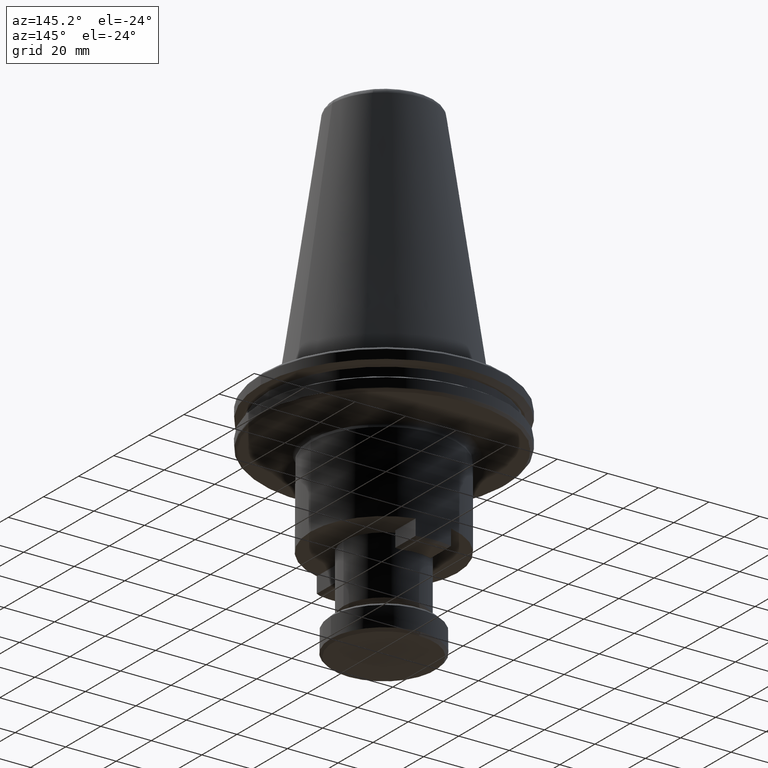
[diagram: clean part render]
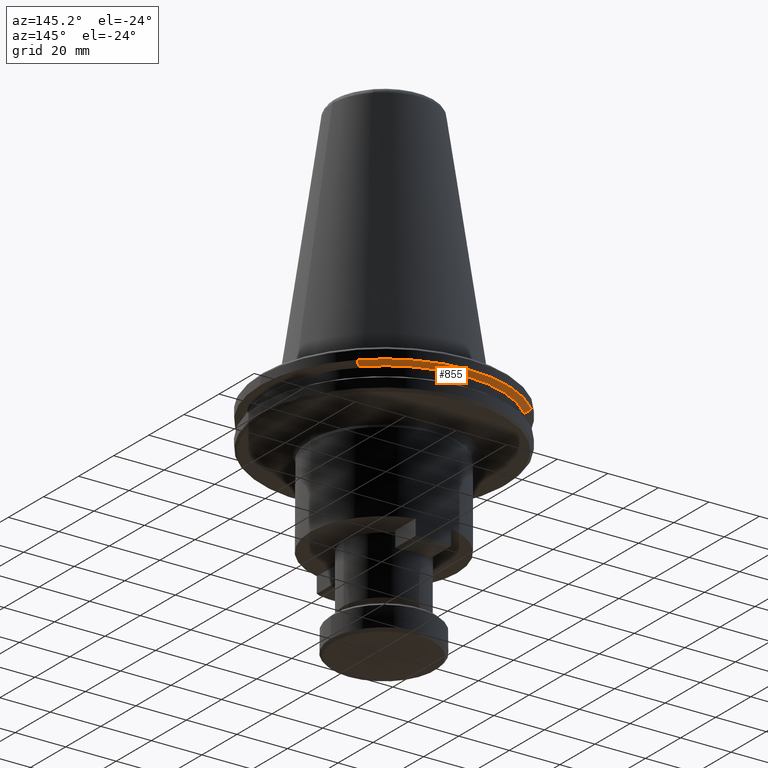
[diagram: same view with one face highlighted and labeled with its STEP entity id]
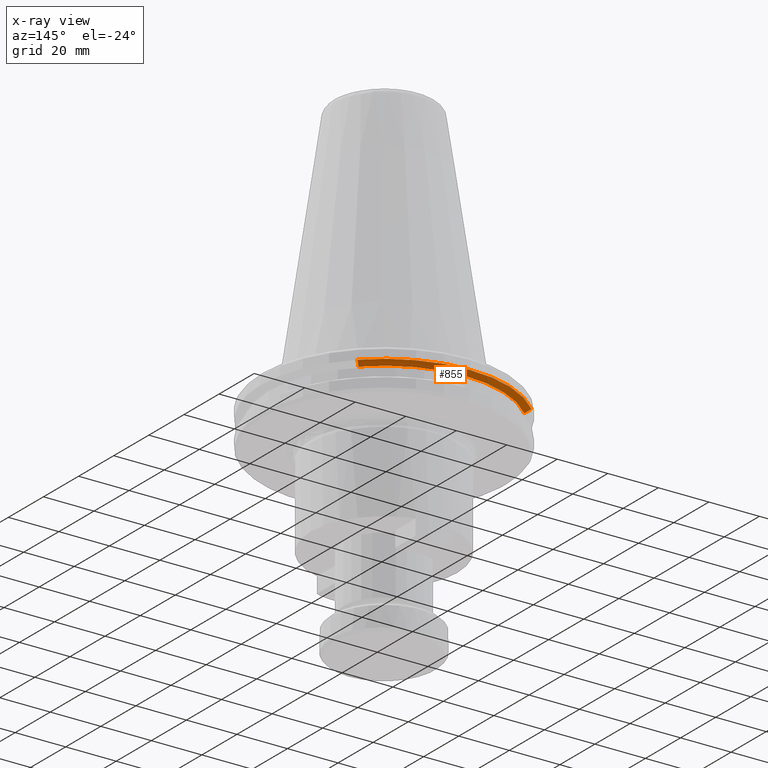
[diagram: x-ray of the same camera — body ghosted, the highlighted face saturated]
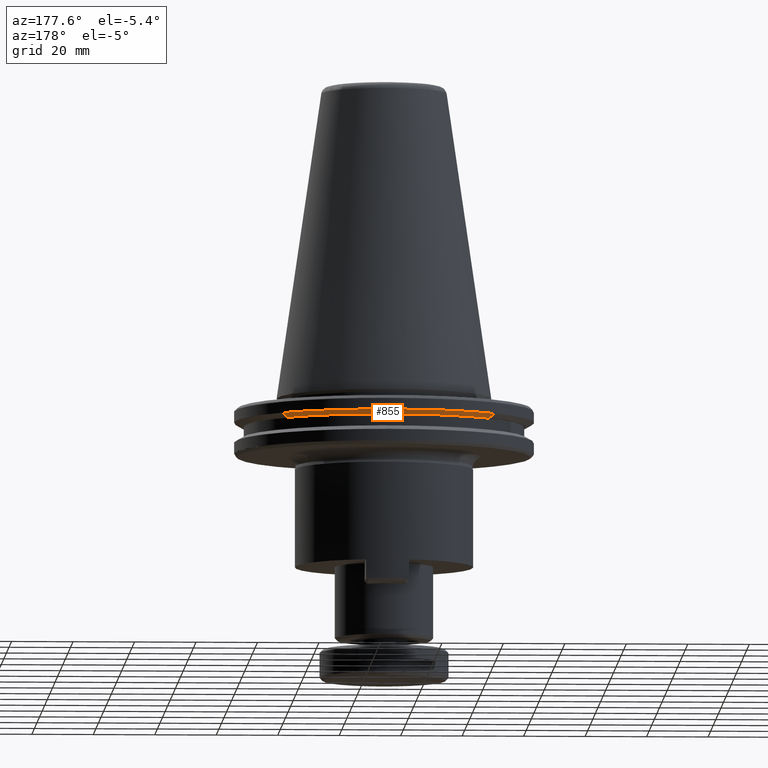
[diagram: same view with one face highlighted and labeled with its STEP entity id]
A machine part, auxiliary view. The second image highlights one B-rep face of the part: STEP entity #855.
The next image is the same camera in x-ray: the body ghosted, the highlighted face saturated — about 0% of this face is hidden behind the body in this view.
A second angle (auxiliary view) of the same face is appended — the face is thin or edge-on in the first view.
In plain terms, the highlighted conical surface has half-angle 60 deg.
Its self-contained STEP definition (entity closure, byte-faithful):
#135 = DIRECTION ( 'NONE',  ( -1.000000000000000000, 0.0000000000000000000, 0.0000000000000000000 ) ) ;
#308 = EDGE_CURVE ( 'NONE', #1368, #1232, #2810, .T. ) ;
#682 = CARTESIAN_POINT ( 'NONE',  ( 57.31755187138055200, 146.3587303515452000, 90.14709804128317200 ) ) ;
#855 = ADVANCED_FACE ( 'NONE', ( #1712 ), #1658, .T. ) ;
#870 = ORIENTED_EDGE ( 'NONE', *, *, #4201, .T. ) ;
#932 = AXIS2_PLACEMENT_3D ( 'NONE', #2227, #2494, #3445 ) ;
#947 = EDGE_CURVE ( 'NONE', #1232, #2693, #1549, .T. ) ;
#1150 = DIRECTION ( 'NONE',  ( -1.000000000000000000, 0.0000000000000000000, 0.0000000000000000000 ) ) ;
#1178 = DIRECTION ( 'NONE',  ( -0.0000000000000000000, -0.0000000000000000000, -1.000000000000000000 ) ) ;
#1198 = CARTESIAN_POINT ( 'NONE',  ( 91.78900745422478700, 111.8872747687010000, 88.77450277828040700 ) ) ;
#1232 = VERTEX_POINT ( 'NONE', #3681 ) ;
#1330 = EDGE_LOOP ( 'NONE', ( #3790, #870, #4617, #4790 ) ) ;
#1368 = VERTEX_POINT ( 'NONE', #682 ) ;
#1549 = CIRCLE ( 'NONE', #3522, 46.37259526400004700 ) ;
#1564 = AXIS2_PLACEMENT_3D ( 'NONE', #4752, #2434, #135 ) ;
#1658 = CONICAL_SURFACE ( 'NONE', #932, 48.75000000000002800, 1.047197551606559500 ) ;
#1712 = FACE_OUTER_BOUND ( 'NONE', #1330, .T. ) ;
#2018 = CARTESIAN_POINT ( 'NONE',  ( 91.78900745422483000, 111.8872747687010500, 62.00127242358518500 ) ) ;
#2227 = CARTESIAN_POINT ( 'NONE',  ( 91.78900745422478700, 111.8872747687010000, 90.14709804128317200 ) ) ;
#2434 = DIRECTION ( 'NONE',  ( -0.0000000000000000000, -0.0000000000000000000, -1.000000000000000000 ) ) ;
#2494 = DIRECTION ( 'NONE',  ( 0.0000000000000000000, 0.0000000000000000000, 1.000000000000000000 ) ) ;
#2693 = VERTEX_POINT ( 'NONE', #3321 ) ;
#2764 = VECTOR ( 'NONE', #4633, 1000.000000000000000 ) ;
#2810 = LINE ( 'NONE', #2018, #2764 ) ;
#3020 = VECTOR ( 'NONE', #3068, 1000.000000000000000 ) ;
#3027 = LINE ( 'NONE', #3841, #3020 ) ;
#3068 = DIRECTION ( 'NONE',  ( -0.6123724357766499000, -0.6123724357766520100, -0.4999999998019430400 ) ) ;
#3321 = CARTESIAN_POINT ( 'NONE',  ( 124.5793840266183400, 144.6776513410946700, 88.77450277828040700 ) ) ;
#3432 = EDGE_CURVE ( 'NONE', #1368, #4072, #3764, .T. ) ;
#3445 = DIRECTION ( 'NONE',  ( 1.000000000000000000, 0.0000000000000000000, 0.0000000000000000000 ) ) ;
#3522 = AXIS2_PLACEMENT_3D ( 'NONE', #1198, #1178, #1150 ) ;
#3681 = CARTESIAN_POINT ( 'NONE',  ( 58.99863088183115400, 144.6776513410945900, 88.77450277828040700 ) ) ;
#3764 = CIRCLE ( 'NONE', #1564, 48.75000000000004300 ) ;
#3790 = ORIENTED_EDGE ( 'NONE', *, *, #3432, .T. ) ;
#3791 = CARTESIAN_POINT ( 'NONE',  ( 126.2604630370689400, 146.3587303515452900, 90.14709804128317200 ) ) ;
#3841 = CARTESIAN_POINT ( 'NONE',  ( 91.78900745422478700, 111.8872747687010000, 62.00127243372875800 ) ) ;
#4072 = VERTEX_POINT ( 'NONE', #3791 ) ;
#4201 = EDGE_CURVE ( 'NONE', #4072, #2693, #3027, .T. ) ;
#4617 = ORIENTED_EDGE ( 'NONE', *, *, #947, .F. ) ;
#4633 = DIRECTION ( 'NONE',  ( 0.6123724357168804900, -0.6123724357168781600, -0.4999999999483529800 ) ) ;
#4752 = CARTESIAN_POINT ( 'NONE',  ( 91.78900745422478700, 111.8872747687010000, 90.14709804128317200 ) ) ;
#4790 = ORIENTED_EDGE ( 'NONE', *, *, #308, .F. ) ;